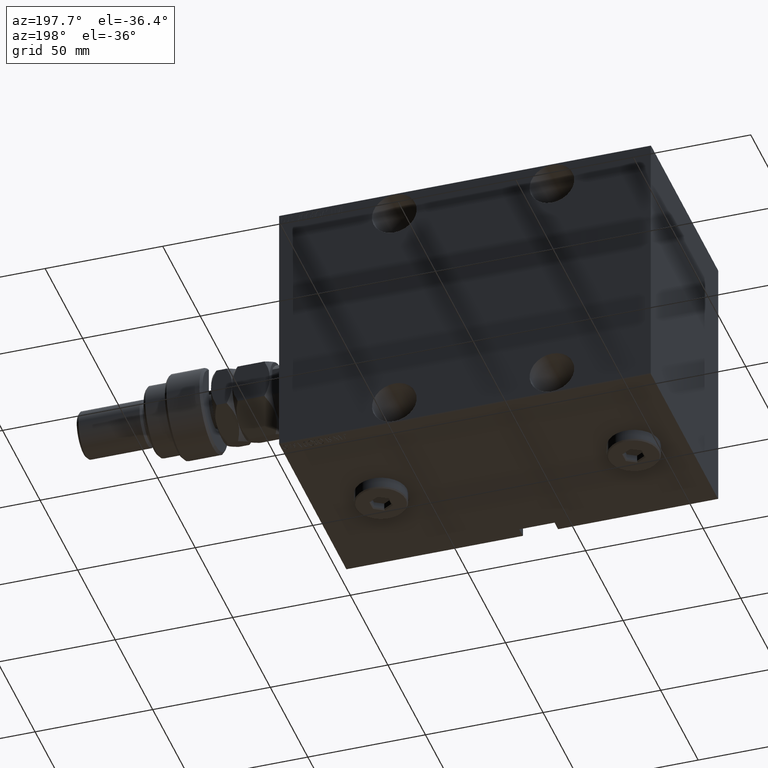
[diagram: clean part render]
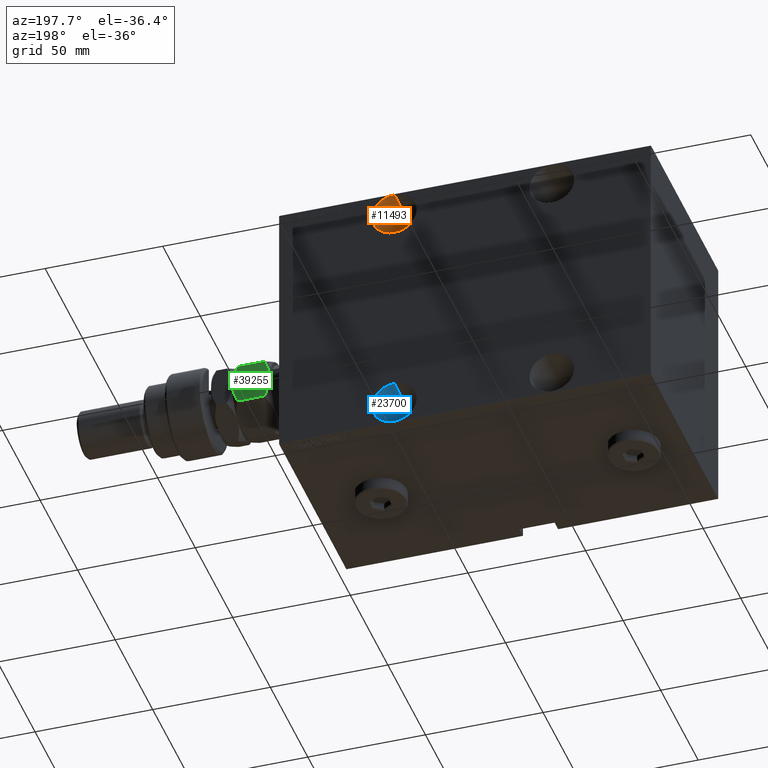
[diagram: same view with three faces highlighted in distinct colors, each labeled with its STEP entity id]
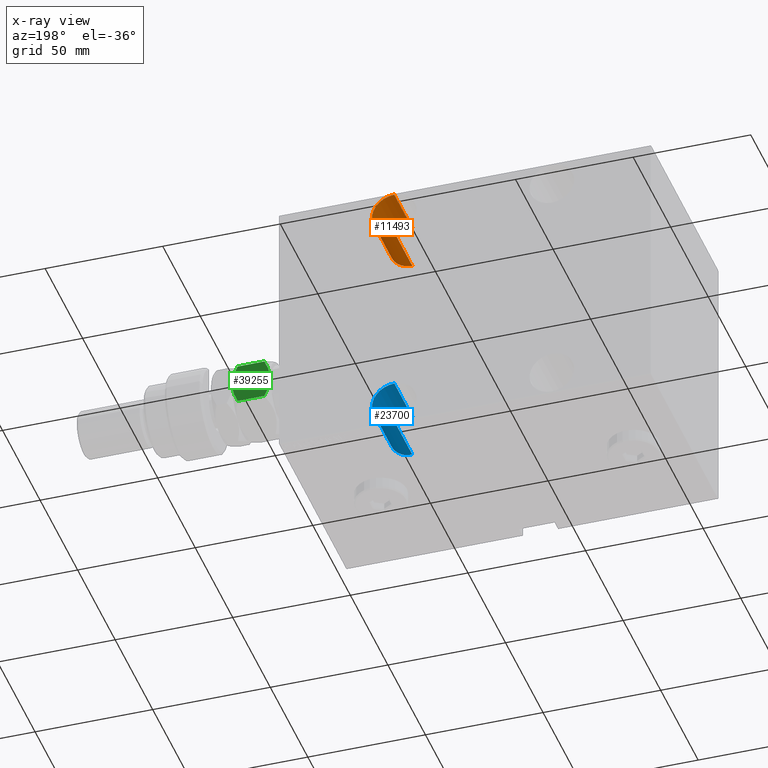
[diagram: x-ray of the same camera — body ghosted, the three highlighted faces saturated]
A machine part, auxiliary view with three faces highlighted in distinct colors.
The next image is the same camera in x-ray (body ghosted, the three faces saturated) — at least one of them is partly hidden behind the body in this view.
Their STEP definitions:

[orange] entity #11493 — the highlighted cylindrical surface (edge-blend (fillet) strip) has radius 9.5 mm, axis along (0, 1, -0).
#194 = ORIENTED_EDGE ( 'NONE', *, *, #27235, .T. ) ;
#247 = AXIS2_PLACEMENT_3D ( 'NONE', #10794, #21345, #36354 ) ;
#650 = LINE ( 'NONE', #36937, #41630 ) ;
#5596 = CIRCLE ( 'NONE', #247, 9.500000000000001776 ) ;
#7569 = DIRECTION ( 'NONE',  ( -0.000000000000000000, -1.000000000000000000, -0.000000000000000000 ) ) ;
#7806 = FACE_OUTER_BOUND ( 'NONE', #23277, .T. ) ;
#9484 = DIRECTION ( 'NONE',  ( 0.000000000000000000, -1.000000000000000000, 0.000000000000000000 ) ) ;
#10231 = VERTEX_POINT ( 'NONE', #16521 ) ;
#10794 = CARTESIAN_POINT ( 'NONE',  ( 49.00000000000000000, -20.99999999999999645, 47.50000000000000000 ) ) ;
#10819 = EDGE_CURVE ( 'NONE', #10231, #42831, #5596, .T. ) ;
#11493 = ADVANCED_FACE ( 'NONE', ( #7806 ), #30021, .F. ) ;
#13444 = VERTEX_POINT ( 'NONE', #45243 ) ;
#14745 = AXIS2_PLACEMENT_3D ( 'NONE', #40993, #7569, #22161 ) ;
#16117 = DIRECTION ( 'NONE',  ( -0.000000000000000000, -1.000000000000000000, -0.000000000000000000 ) ) ;
#16521 = CARTESIAN_POINT ( 'NONE',  ( 49.00000000000000000, -20.99999999999999645, 57.00000000000000000 ) ) ;
#17524 = DIRECTION ( 'NONE',  ( -0.000000000000000000, -1.000000000000000000, -0.000000000000000000 ) ) ;
#20135 = CARTESIAN_POINT ( 'NONE',  ( 49.00000000000000000, -20.99999999999999645, 38.00000000000000000 ) ) ;
#21345 = DIRECTION ( 'NONE',  ( 0.000000000000000000, -1.000000000000000000, 0.000000000000000000 ) ) ;
#22161 = DIRECTION ( 'NONE',  ( 0.000000000000000000, 0.000000000000000000, -1.000000000000000000 ) ) ;
#22585 = AXIS2_PLACEMENT_3D ( 'NONE', #26698, #9484, #31237 ) ;
#23277 = EDGE_LOOP ( 'NONE', ( #28219, #44830, #194, #45842 ) ) ;
#25611 = CARTESIAN_POINT ( 'NONE',  ( 49.00000000000000000, -20.99999999999999645, 57.00000000000000000 ) ) ;
#26698 = CARTESIAN_POINT ( 'NONE',  ( 49.00000000000000000, -45.00000000000000000, 47.50000000000000000 ) ) ;
#27160 = CIRCLE ( 'NONE', #22585, 9.500000000000001776 ) ;
#27235 = EDGE_CURVE ( 'NONE', #13444, #29865, #27160, .T. ) ;
#28219 = ORIENTED_EDGE ( 'NONE', *, *, #10819, .F. ) ;
#28493 = LINE ( 'NONE', #25611, #38593 ) ;
#29865 = VERTEX_POINT ( 'NONE', #40256 ) ;
#30021 = CYLINDRICAL_SURFACE ( 'NONE', #14745, 9.500000000000001776 ) ;
#31237 = DIRECTION ( 'NONE',  ( 0.000000000000000000, 0.000000000000000000, -1.000000000000000000 ) ) ;
#36354 = DIRECTION ( 'NONE',  ( 0.000000000000000000, 0.000000000000000000, -1.000000000000000000 ) ) ;
#36937 = CARTESIAN_POINT ( 'NONE',  ( 49.00000000000000000, -20.99999999999999645, 38.00000000000000000 ) ) ;
#38593 = VECTOR ( 'NONE', #17524, 1000.000000000000000 ) ;
#40256 = CARTESIAN_POINT ( 'NONE',  ( 49.00000000000000000, -45.00000000000000000, 38.00000000000000000 ) ) ;
#40993 = CARTESIAN_POINT ( 'NONE',  ( 49.00000000000000000, -20.99999999999999645, 47.50000000000000000 ) ) ;
#41630 = VECTOR ( 'NONE', #16117, 1000.000000000000000 ) ;
#42831 = VERTEX_POINT ( 'NONE', #20135 ) ;
#44830 = ORIENTED_EDGE ( 'NONE', *, *, #45821, .T. ) ;
#45243 = CARTESIAN_POINT ( 'NONE',  ( 49.00000000000000000, -45.00000000000000000, 57.00000000000000000 ) ) ;
#45603 = EDGE_CURVE ( 'NONE', #42831, #29865, #650, .T. ) ;
#45821 = EDGE_CURVE ( 'NONE', #10231, #13444, #28493, .T. ) ;
#45842 = ORIENTED_EDGE ( 'NONE', *, *, #45603, .F. ) ;

[blue] entity #23700 — the highlighted cylindrical surface (edge-blend (fillet) strip) has radius 9.5 mm, axis along (0, 1, -0).
#775 = VERTEX_POINT ( 'NONE', #46585 ) ;
#2462 = ORIENTED_EDGE ( 'NONE', *, *, #18864, .T. ) ;
#5687 = FACE_OUTER_BOUND ( 'NONE', #31845, .T. ) ;
#5934 = DIRECTION ( 'NONE',  ( 0.000000000000000000, 0.000000000000000000, -1.000000000000000000 ) ) ;
#6676 = VERTEX_POINT ( 'NONE', #28939 ) ;
#8922 = VERTEX_POINT ( 'NONE', #15116 ) ;
#11031 = AXIS2_PLACEMENT_3D ( 'NONE', #45790, #27654, #13090 ) ;
#11994 = DIRECTION ( 'NONE',  ( 0.000000000000000000, -1.000000000000000000, 0.000000000000000000 ) ) ;
#13090 = DIRECTION ( 'NONE',  ( 0.000000000000000000, 0.000000000000000000, -1.000000000000000000 ) ) ;
#13755 = ORIENTED_EDGE ( 'NONE', *, *, #27509, .T. ) ;
#15116 = CARTESIAN_POINT ( 'NONE',  ( 49.00000000000000000, -20.99999999999999645, -57.00000000000001421 ) ) ;
#16102 = EDGE_CURVE ( 'NONE', #8922, #25257, #43822, .T. ) ;
#18545 = DIRECTION ( 'NONE',  ( -0.000000000000000000, -1.000000000000000000, -0.000000000000000000 ) ) ;
#18824 = ORIENTED_EDGE ( 'NONE', *, *, #16102, .F. ) ;
#18864 = EDGE_CURVE ( 'NONE', #775, #25257, #38308, .T. ) ;
#23700 = ADVANCED_FACE ( 'NONE', ( #5687 ), #34351, .F. ) ;
#24598 = EDGE_CURVE ( 'NONE', #6676, #8922, #27057, .T. ) ;
#25257 = VERTEX_POINT ( 'NONE', #43282 ) ;
#25695 = CARTESIAN_POINT ( 'NONE',  ( 49.00000000000000000, -20.99999999999999645, -57.00000000000001421 ) ) ;
#26043 = VECTOR ( 'NONE', #18545, 1000.000000000000000 ) ;
#27057 = CIRCLE ( 'NONE', #46096, 9.500000000000001776 ) ;
#27509 = EDGE_CURVE ( 'NONE', #6676, #775, #44062, .T. ) ;
#27654 = DIRECTION ( 'NONE',  ( -0.000000000000000000, -1.000000000000000000, -0.000000000000000000 ) ) ;
#28621 = CARTESIAN_POINT ( 'NONE',  ( 49.00000000000000000, -45.00000000000000000, -47.50000000000001421 ) ) ;
#28939 = CARTESIAN_POINT ( 'NONE',  ( 49.00000000000000000, -20.99999999999999645, -38.00000000000001421 ) ) ;
#31845 = EDGE_LOOP ( 'NONE', ( #37168, #13755, #2462, #18824 ) ) ;
#32863 = DIRECTION ( 'NONE',  ( -0.000000000000000000, -1.000000000000000000, -0.000000000000000000 ) ) ;
#33142 = DIRECTION ( 'NONE',  ( 0.000000000000000000, -1.000000000000000000, 0.000000000000000000 ) ) ;
#34351 = CYLINDRICAL_SURFACE ( 'NONE', #11031, 9.500000000000001776 ) ;
#36448 = CARTESIAN_POINT ( 'NONE',  ( 49.00000000000000000, -20.99999999999999645, -38.00000000000001421 ) ) ;
#37168 = ORIENTED_EDGE ( 'NONE', *, *, #24598, .F. ) ;
#38308 = CIRCLE ( 'NONE', #39050, 9.500000000000001776 ) ;
#39050 = AXIS2_PLACEMENT_3D ( 'NONE', #28621, #33142, #43638 ) ;
#40107 = VECTOR ( 'NONE', #32863, 1000.000000000000000 ) ;
#42224 = CARTESIAN_POINT ( 'NONE',  ( 49.00000000000000000, -20.99999999999999645, -47.50000000000001421 ) ) ;
#43282 = CARTESIAN_POINT ( 'NONE',  ( 49.00000000000000000, -45.00000000000000000, -57.00000000000001421 ) ) ;
#43638 = DIRECTION ( 'NONE',  ( 0.000000000000000000, 0.000000000000000000, -1.000000000000000000 ) ) ;
#43822 = LINE ( 'NONE', #25695, #26043 ) ;
#44062 = LINE ( 'NONE', #36448, #40107 ) ;
#45790 = CARTESIAN_POINT ( 'NONE',  ( 49.00000000000000000, -20.99999999999999645, -47.50000000000001421 ) ) ;
#46096 = AXIS2_PLACEMENT_3D ( 'NONE', #42224, #11994, #5934 ) ;
#46585 = CARTESIAN_POINT ( 'NONE',  ( 49.00000000000000000, -45.00000000000000000, -38.00000000000001421 ) ) ;

[green] entity #39255 — the highlighted planar face has unit normal (0, -1, 0).
#34 = CARTESIAN_POINT ( 'NONE',  ( -6.195449321423083688, 13.74356374221447297, 3.003578830963748213E-15 ) ) ;
#121 = CARTESIAN_POINT ( 'NONE',  ( 3.803331551779305683E-16, 17.32050807568877104, 13.67949192431124317 ) ) ;
#135 = ORIENTED_EDGE ( 'NONE', *, *, #37523, .F. ) ;
#269 = CARTESIAN_POINT ( 'NONE',  ( -2.383929548160348855, 15.94414570932928576, 1.060479031370877401 ) ) ;
#915 = CARTESIAN_POINT ( 'NONE',  ( -1.176108425306640504, 16.64148155974180199, 14.35851844025821578 ) ) ;
#1160 = CARTESIAN_POINT ( 'NONE',  ( -7.499999999999991118, 12.99038105676658184, 16.00000000000000000 ) ) ;
#1927 = CARTESIAN_POINT ( 'NONE',  ( -15.00000000000000000, 8.660254037844394404, 2.320508075688769711 ) ) ;
#2520 = VERTEX_POINT ( 'NONE', #41960 ) ;
#2943 = CARTESIAN_POINT ( 'NONE',  ( -8.804550678576905653, 12.23719837131869781, 16.00000000000000000 ) ) ;
#3172 = CARTESIAN_POINT ( 'NONE',  ( -7.499999999999991118, 12.99038105676658184, 16.00000000000000000 ) ) ;
#3356 = EDGE_CURVE ( 'NONE', #36362, #17109, #18029, .T. ) ;
#3600 = ORIENTED_EDGE ( 'NONE', *, *, #8798, .F. ) ;
#4029 = CARTESIAN_POINT ( 'NONE',  ( -4.881674457977373649, 14.50207201327941675, 15.71619733805371055 ) ) ;
#5217 = VERTEX_POINT ( 'NONE', #42463 ) ;
#6503 = FACE_OUTER_BOUND ( 'NONE', #46810, .T. ) ;
#6556 = ORIENTED_EDGE ( 'NONE', *, *, #28305, .F. ) ;
#8082 = CARTESIAN_POINT ( 'NONE',  ( 3.803331551779305683E-16, 17.32050807568877104, 13.67949192431124317 ) ) ;
#8100 = ORIENTED_EDGE ( 'NONE', *, *, #26848, .T. ) ;
#8798 = EDGE_CURVE ( 'NONE', #5217, #19484, #10212, .T. ) ;
#9793 = CARTESIAN_POINT ( 'NONE',  ( -8.156876182308247181, 12.61113341608666083, 3.106916850528774038E-15 ) ) ;
#10212 = B_SPLINE_CURVE_WITH_KNOTS ( 'NONE', 3,
 ( #3172, #2943, #28956, #14163, #29195, #10333 ),
 .UNSPECIFIED., .F., .F.,
 ( 4, 2, 4 ),
 ( 0.008977392552884438590, 0.01343452311421656012, 0.01789165367554868338 ),
 .UNSPECIFIED. ) ;
#10333 = CARTESIAN_POINT ( 'NONE',  ( -15.00000000000000000, 8.660254037844392627, 13.67949192431123429 ) ) ;
#11372 = AXIS2_PLACEMENT_3D ( 'NONE', #28713, #39460, #21101 ) ;
#14163 = CARTESIAN_POINT ( 'NONE',  ( -12.61607045183964715, 10.03661640420387435, 14.93952096862911816 ) ) ;
#16162 = B_SPLINE_CURVE_WITH_KNOTS ( 'NONE', 3,
 ( #1927, #27470, #42027, #46070, #42502, #27945, #9793, #28179 ),
 .UNSPECIFIED., .F., .F.,
 ( 4, 2, 2, 4 ),
 ( 2.544309033652409006E-07, 0.004488823491893913914, 0.006733108022389184058, 0.008977392552884454202 ),
 .UNSPECIFIED. ) ;
#17109 = VERTEX_POINT ( 'NONE', #36878 ) ;
#18029 = B_SPLINE_CURVE_WITH_KNOTS ( 'NONE', 3,
 ( #40142, #34, #47066, #269, #46832, #28461 ),
 .UNSPECIFIED., .F., .F.,
 ( 4, 2, 4 ),
 ( 0.008977392552884454202, 0.01343452311421656706, 0.01789165367554867991 ),
 .UNSPECIFIED. ) ;
#19039 = CARTESIAN_POINT ( 'NONE',  ( -7.499999999999992895, 12.99038105676658361, 0.000000000000000000 ) ) ;
#19375 = CARTESIAN_POINT ( 'NONE',  ( -15.00000000000000000, 8.660254037844392627, 13.67949192431123429 ) ) ;
#19484 = VERTEX_POINT ( 'NONE', #19375 ) ;
#21101 = DIRECTION ( 'NONE',  ( 0.8660254037844389297, 0.4999999999999995559, 0.000000000000000000 ) ) ;
#22678 = CARTESIAN_POINT ( 'NONE',  ( -6.843123817691743938, 13.36962869744650995, 16.00000000000000355 ) ) ;
#22909 = CARTESIAN_POINT ( 'NONE',  ( -6.176419610670691895, 13.75455055083996747, 15.94046462602529957 ) ) ;
#24212 = VECTOR ( 'NONE', #27094, 1000.000000000000000 ) ;
#26237 = CARTESIAN_POINT ( 'NONE',  ( -4.247772349543481596, 14.86805556622359070, 15.55242859148697043 ) ) ;
#26471 = CARTESIAN_POINT ( 'NONE',  ( -2.378834511187503331, 15.94708733029709435, 14.93551393225599710 ) ) ;
#26559 = ORIENTED_EDGE ( 'NONE', *, *, #3356, .F. ) ;
#26630 = CARTESIAN_POINT ( 'NONE',  ( -15.00000000000000000, 8.660254037844392627, 16.00000000000000000 ) ) ;
#26848 = EDGE_CURVE ( 'NONE', #33891, #17109, #32569, .T. ) ;
#27094 = DIRECTION ( 'NONE',  ( -0.000000000000000000, -0.000000000000000000, -1.000000000000000000 ) ) ;
#27470 = CARTESIAN_POINT ( 'NONE',  ( -13.82389157469336283, 9.339280553791375894, 1.641481559741795548 ) ) ;
#27945 = CARTESIAN_POINT ( 'NONE',  ( -8.823580389329299223, 12.22621156269320863, 0.05953537397470442388 ) ) ;
#28179 = CARTESIAN_POINT ( 'NONE',  ( -7.499999999999992895, 12.99038105676658361, 0.000000000000000000 ) ) ;
#28305 = EDGE_CURVE ( 'NONE', #2520, #36362, #16162, .T. ) ;
#28461 = CARTESIAN_POINT ( 'NONE',  ( 7.621669386706803087E-17, 17.32050807568877104, 2.320508075688761718 ) ) ;
#28713 = CARTESIAN_POINT ( 'NONE',  ( 0.000000000000000000, 17.32050807568877104, 16.00000000000000000 ) ) ;
#28956 = CARTESIAN_POINT ( 'NONE',  ( -10.08691881950258740, 11.49682277995505864, 15.76967007806078236 ) ) ;
#29195 = CARTESIAN_POINT ( 'NONE',  ( -13.82525345580783771, 9.338494271363320109, 14.35773215783021683 ) ) ;
#29377 = ORIENTED_EDGE ( 'NONE', *, *, #34404, .F. ) ;
#32535 = PLANE ( 'NONE',  #11372 ) ;
#32569 = LINE ( 'NONE', #43524, #37014 ) ;
#33891 = VERTEX_POINT ( 'NONE', #121 ) ;
#34404 = EDGE_CURVE ( 'NONE', #19484, #2520, #45470, .T. ) ;
#36147 = DIRECTION ( 'NONE',  ( -0.000000000000000000, -0.000000000000000000, -1.000000000000000000 ) ) ;
#36362 = VERTEX_POINT ( 'NONE', #19039 ) ;
#36878 = CARTESIAN_POINT ( 'NONE',  ( 7.621669386706803087E-17, 17.32050807568877104, 2.320508075688761718 ) ) ;
#37014 = VECTOR ( 'NONE', #36147, 1000.000000000000000 ) ;
#37523 = EDGE_CURVE ( 'NONE', #33891, #5217, #44389, .T. ) ;
#39255 = ADVANCED_FACE ( 'NONE', ( #6503 ), #32535, .F. ) ;
#39460 = DIRECTION ( 'NONE',  ( 0.4999999999999995559, -0.8660254037844389297, 0.000000000000000000 ) ) ;
#40142 = CARTESIAN_POINT ( 'NONE',  ( -7.499999999999992895, 12.99038105676658361, 0.000000000000000000 ) ) ;
#41960 = CARTESIAN_POINT ( 'NONE',  ( -15.00000000000000000, 8.660254037844394404, 2.320508075688769711 ) ) ;
#42027 = CARTESIAN_POINT ( 'NONE',  ( -12.62116548881249400, 10.03367478323607109, 1.064486067744009556 ) ) ;
#42463 = CARTESIAN_POINT ( 'NONE',  ( -7.499999999999991118, 12.99038105676658184, 16.00000000000000000 ) ) ;
#42502 = CARTESIAN_POINT ( 'NONE',  ( -10.11832554202262280, 11.47869010025375403, 0.2838026619462963862 ) ) ;
#43524 = CARTESIAN_POINT ( 'NONE',  ( 0.000000000000000000, 17.32050807568877104, 16.00000000000000000 ) ) ;
#44389 = B_SPLINE_CURVE_WITH_KNOTS ( 'NONE', 3,
 ( #8082, #915, #26471, #26237, #4029, #22909, #22678, #1160 ),
 .UNSPECIFIED., .F., .F.,
 ( 4, 2, 2, 4 ),
 ( 2.544309033646407248E-07, 0.004488823491893900036, 0.006733108022389169313, 0.008977392552884438590 ),
 .UNSPECIFIED. ) ;
#45470 = LINE ( 'NONE', #26630, #24212 ) ;
#46070 = CARTESIAN_POINT ( 'NONE',  ( -10.75222765045650597, 11.11270654730957119, 0.4475714085130295117 ) ) ;
#46810 = EDGE_LOOP ( 'NONE', ( #6556, #29377, #3600, #135, #8100, #26559 ) ) ;
#46832 = CARTESIAN_POINT ( 'NONE',  ( -1.174746544192158293, 16.64226784216984356, 1.642267842169780501 ) ) ;
#47066 = CARTESIAN_POINT ( 'NONE',  ( -4.913081180497406386, 14.48393933357811214, 0.2303299219392169472 ) ) ;